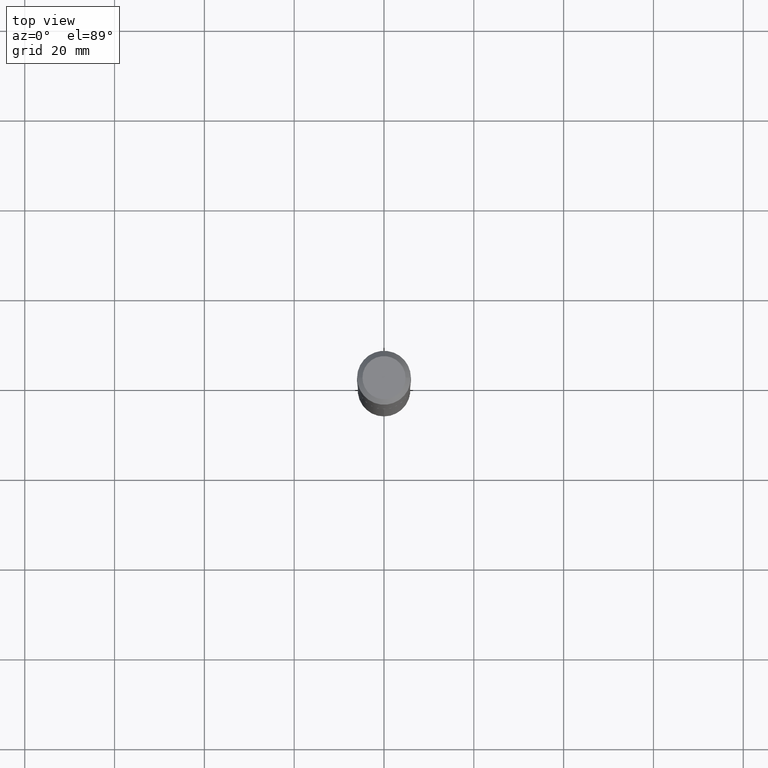
[diagram: clean part render]
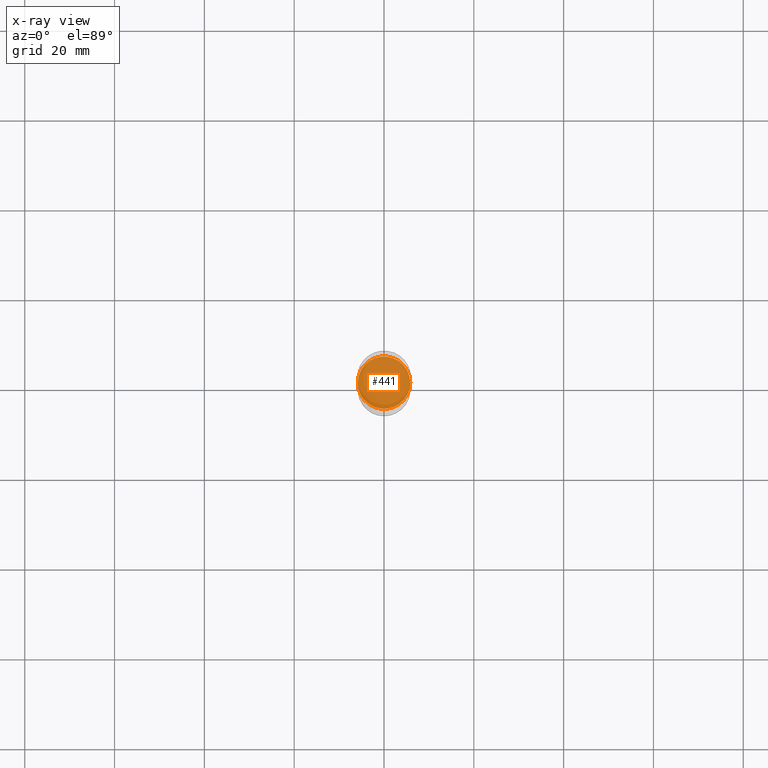
[diagram: x-ray — body ghosted, one internal face saturated and labeled with its STEP entity id]
A machine part, top view, then the same camera in x-ray: the body is ghosted and one INTERNAL B-rep face — a face not visible from any outside direction — is saturated and labeled: STEP entity #441.
In plain terms, the highlighted planar face has unit normal (-0, 0, 1).
Its self-contained STEP definition (entity closure, byte-faithful):
#23 = DIRECTION ( 'NONE',  ( 1.000000000000000000, -6.982962677686265922E-15, 4.876176775795935793E-29 ) ) ;
#31 = CARTESIAN_POINT ( 'NONE',  ( 6.354306145991461998E-29, -9.072265110850035778E-15, -2.598400000000001597 ) ) ;
#61 = CARTESIAN_POINT ( 'NONE',  ( 2.040285390366419992E-29, -1.525018837171794076E-14, -2.598400000000001597 ) ) ;
#66 = CIRCLE ( 'NONE', #126, 0.2298000000000000043 ) ;
#126 = AXIS2_PLACEMENT_3D ( 'NONE', #31, #286, #439 ) ;
#139 = VERTEX_POINT ( 'NONE', #280 ) ;
#210 = FACE_OUTER_BOUND ( 'NONE', #405, .T. ) ;
#249 = CARTESIAN_POINT ( 'NONE',  ( -0.2298000000000000043, -7.436788676899211953E-15, -2.598400000000001597 ) ) ;
#261 = AXIS2_PLACEMENT_3D ( 'NONE', #447, #296, #335 ) ;
#277 = ORIENTED_EDGE ( 'NONE', *, *, #366, .F. ) ;
#280 = CARTESIAN_POINT ( 'NONE',  ( 0.2298000000000000043, -1.067694993418234023E-14, -2.598400000000001597 ) ) ;
#283 = AXIS2_PLACEMENT_3D ( 'NONE', #61, #357, #23 ) ;
#286 = DIRECTION ( 'NONE',  ( -2.445468806185136597E-29, 3.491481338843145583E-15, 1.000000000000000000 ) ) ;
#296 = DIRECTION ( 'NONE',  ( -2.445468806185136597E-29, 3.491481338843145583E-15, 1.000000000000000000 ) ) ;
#326 = ORIENTED_EDGE ( 'NONE', *, *, #456, .F. ) ;
#335 = DIRECTION ( 'NONE',  ( 1.000000000000000000, -6.982962677686267499E-15, 0.000000000000000000 ) ) ;
#357 = DIRECTION ( 'NONE',  ( -2.438088387897960049E-29, 3.491481338843145188E-15, 1.000000000000000000 ) ) ;
#366 = EDGE_CURVE ( 'NONE', #139, #396, #66, .T. ) ;
#394 = PLANE ( 'NONE',  #283 ) ;
#396 = VERTEX_POINT ( 'NONE', #249 ) ;
#405 = EDGE_LOOP ( 'NONE', ( #277, #326 ) ) ;
#412 = CIRCLE ( 'NONE', #261, 0.2298000000000000043 ) ;
#439 = DIRECTION ( 'NONE',  ( 1.000000000000000000, -6.982962677686267499E-15, 0.000000000000000000 ) ) ;
#441 = ADVANCED_FACE ( 'NONE', ( #210 ), #394, .F. ) ;
#447 = CARTESIAN_POINT ( 'NONE',  ( 6.354306145991461998E-29, -9.072265110850035778E-15, -2.598400000000001597 ) ) ;
#456 = EDGE_CURVE ( 'NONE', #396, #139, #412, .T. ) ;